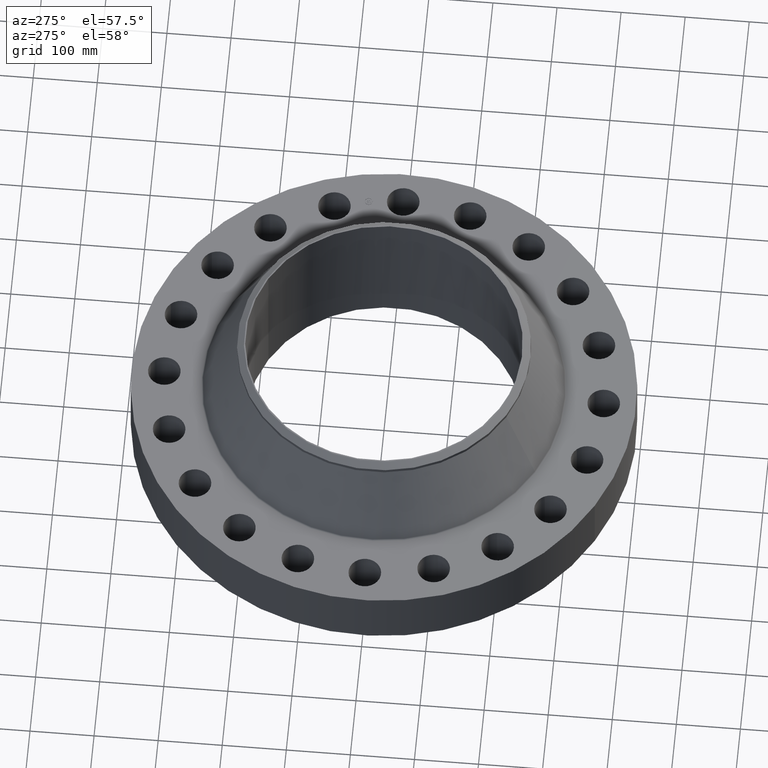
[diagram: clean part render]
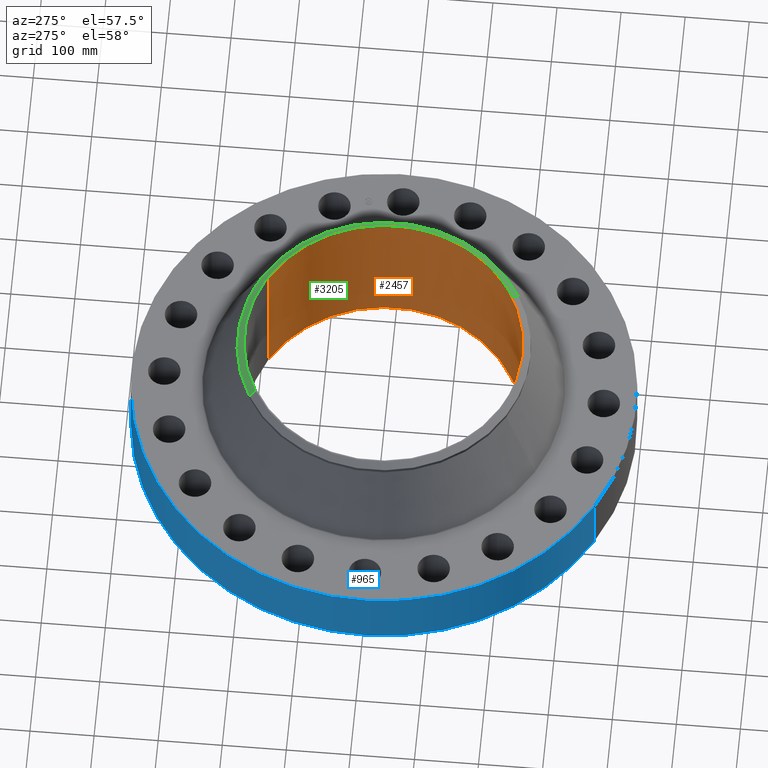
[diagram: same view with three faces highlighted in distinct colors, each labeled with its STEP entity id]
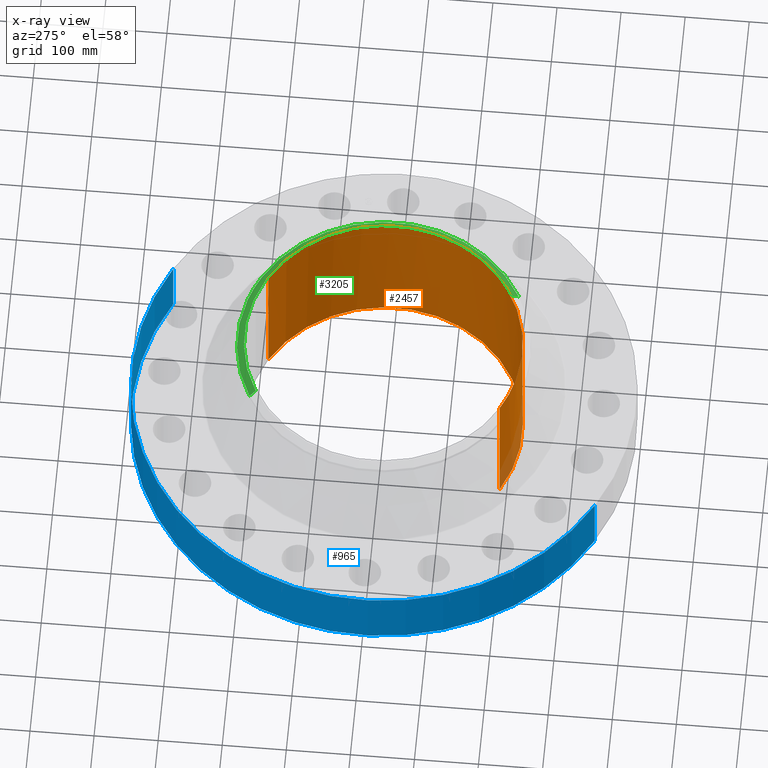
[diagram: x-ray of the same camera — body ghosted, the three highlighted faces saturated]
A machine part, auxiliary view with three faces highlighted in distinct colors.
The next image is the same camera in x-ray (body ghosted, the three faces saturated) — at least one of them is partly hidden behind the body in this view.
Their STEP definitions:

[orange] entity #2457 — the highlighted cylindrical surface (partial cylindrical patch) has radius 215.9 mm, axis along (-0, 0, -1).
#2138=AXIS2_PLACEMENT_3D('Circle Axis2P3D',#2136,#2137,$) ;
#2406=AXIS2_PLACEMENT_3D('Cylinder Axis2P3D',#2403,#2404,#2405) ;
#2136=CARTESIAN_POINT('Axis2P3D Location',(1.28110295775E-011,-2.83321922353E-011,-0.250000000001)) ;
#2140=CARTESIAN_POINT('Vertex',(4.07511707813,7.45945177607,-0.250000000001)) ;
#2142=CARTESIAN_POINT('Vertex',(-4.07511707815,-7.45945177609,-0.249999999965)) ;
#2403=CARTESIAN_POINT('Axis2P3D Location',(0.,0.,4.37500000002)) ;
#2409=CARTESIAN_POINT('Control Point',(4.07511707815,7.45945177609,9.00000000004)) ;
#2410=CARTESIAN_POINT('Control Point',(4.66098105064,7.13939282921,9.00000000004)) ;
#2411=CARTESIAN_POINT('Control Point',(5.2154233095,6.76181682133,9.00000000004)) ;
#2412=CARTESIAN_POINT('Control Point',(5.73091221257,6.33083345495,9.00000000004)) ;
#2413=CARTESIAN_POINT('Control Point',(6.67056657475,5.37326929513,9.00000000004)) ;
#2414=CARTESIAN_POINT('Control Point',(7.40605811924,4.2512480705,9.00000000003)) ;
#2415=CARTESIAN_POINT('Control Point',(7.71737757209,3.65580229668,9.00000000003)) ;
#2416=CARTESIAN_POINT('Control Point',(8.21906106555,2.4115382118,9.00000000003)) ;
#2417=CARTESIAN_POINT('Control Point',(8.46918771641,1.0934653386,9.00000000003)) ;
#2418=CARTESIAN_POINT('Control Point',(8.52894215445,0.424208378666,9.00000000003)) ;
#2419=CARTESIAN_POINT('Control Point',(8.5162780151,-0.917327703632,9.00000000003)) ;
#2420=CARTESIAN_POINT('Control Point',(8.24296025714,-2.23078757882,9.00000000003)) ;
#2421=CARTESIAN_POINT('Control Point',(8.04205260886,-2.87196741954,9.00000000002)) ;
#2422=CARTESIAN_POINT('Control Point',(7.51696883709,-4.10653879178,9.00000000002)) ;
#2423=CARTESIAN_POINT('Control Point',(6.76181682133,-5.2154233095,9.00000000002)) ;
#2424=CARTESIAN_POINT('Control Point',(6.33083345495,-5.73091221257,9.00000000002)) ;
#2425=CARTESIAN_POINT('Control Point',(5.37326929514,-6.67056657475,9.00000000002)) ;
#2426=CARTESIAN_POINT('Control Point',(4.25124807051,-7.40605811924,9.00000000002)) ;
#2427=CARTESIAN_POINT('Control Point',(3.65580229668,-7.71737757208,9.00000000002)) ;
#2428=CARTESIAN_POINT('Control Point',(2.4115382118,-8.21906106555,9.00000000001)) ;
#2429=CARTESIAN_POINT('Control Point',(1.0934653386,-8.46918771641,9.00000000001)) ;
#2430=CARTESIAN_POINT('Control Point',(0.424208378669,-8.52894215445,9.00000000001)) ;
#2431=CARTESIAN_POINT('Control Point',(-0.917327703629,-8.5162780151,9.00000000001)) ;
#2432=CARTESIAN_POINT('Control Point',(-2.23078757881,-8.24296025714,9.00000000001)) ;
#2433=CARTESIAN_POINT('Control Point',(-2.87196741954,-8.04205260886,9.00000000001)) ;
#2434=CARTESIAN_POINT('Control Point',(-3.48925310566,-7.77951072298,9.00000000001)) ;
#2435=CARTESIAN_POINT('Control Point',(-4.07511707815,-7.4594517761,9.00000000001)) ;
#2436=CARTESIAN_POINT('Vertex',(4.07511707815,7.45945177609,9.00000000001)) ;
#2438=CARTESIAN_POINT('Vertex',(-4.07511707813,-7.45945177608,9.00000000004)) ;
#2441=CARTESIAN_POINT('Line Origine',(4.07511707815,7.45945177609,4.37500000002)) ;
#2446=CARTESIAN_POINT('Line Origine',(-4.07511707815,-7.45945177609,4.37500000002)) ;
#2137=DIRECTION('Axis2P3D Direction',(0.,0.,-0.0393700787402)) ;
#2404=DIRECTION('Axis2P3D Direction',(-0.,0.,-0.0393700787402)) ;
#2405=DIRECTION('Axis2P3D XDirection',(0.0188750212049,0.0345504945626,0.)) ;
#2442=DIRECTION('Vector Direction',(0.,0.,-0.0393700787402)) ;
#2447=DIRECTION('Vector Direction',(0.,0.,-0.0393700787402)) ;
#2443=VECTOR('Line Direction',#2442,0.0393700787402) ;
#2448=VECTOR('Line Direction',#2447,0.0393700787402) ;
#2452=ORIENTED_EDGE('',*,*,#2440,.F.) ;
#2453=ORIENTED_EDGE('',*,*,#2445,.T.) ;
#2454=ORIENTED_EDGE('',*,*,#2144,.T.) ;
#2455=ORIENTED_EDGE('',*,*,#2450,.F.) ;
#2457=ADVANCED_FACE('PartBody',(#2456),#2407,.F.) ;
#2408=B_SPLINE_CURVE_WITH_KNOTS('',5,(#2409,#2410,#2411,#2412,#2413,#2414,#2415,#2416,#2417,#2418,#2419,#2420,#2421,#2422,#2423,#2424,#2425,#2426,#2427,#2428,#2429,#2430,#2431,#2432,#2433,#2434,#2435),.UNSPECIFIED.,.F.,.U.,(6,3,3,3,3,3,3,3,6),(-339.134926956,-254.351195217,-169.567463478,-84.783731739,2.84217094304E-014,84.783731739,169.567463478,254.351195217,339.134926956),.UNSPECIFIED.) ;
#2139=CIRCLE('generated circle',#2138,8.50000000002) ;
#2407=CYLINDRICAL_SURFACE('generated cylinder',#2406,8.50000000003) ;
#2144=EDGE_CURVE('',#2141,#2143,#2139,.T.) ;
#2440=EDGE_CURVE('',#2437,#2439,#2408,.T.) ;
#2445=EDGE_CURVE('',#2437,#2141,#2444,.T.) ;
#2450=EDGE_CURVE('',#2439,#2143,#2449,.T.) ;
#2451=EDGE_LOOP('',(#2452,#2453,#2454,#2455)) ;
#2456=FACE_OUTER_BOUND('',#2451,.T.) ;
#2444=LINE('Line',#2441,#2443) ;
#2449=LINE('Line',#2446,#2448) ;
#2141=VERTEX_POINT('',#2140) ;
#2143=VERTEX_POINT('',#2142) ;
#2437=VERTEX_POINT('',#2436) ;
#2439=VERTEX_POINT('',#2438) ;

[blue] entity #965 — the highlighted cylindrical surface (partial cylindrical patch) has radius 393.7 mm, axis along (0, 0, -1).
#143=AXIS2_PLACEMENT_3D('Circle Axis2P3D',#141,#142,$) ;
#547=AXIS2_PLACEMENT_3D('Circle Axis2P3D',#545,#546,$) ;
#947=AXIS2_PLACEMENT_3D('Cylinder Axis2P3D',#944,#945,#946) ;
#141=CARTESIAN_POINT('Axis2P3D Location',(0.,2.933478482E-011,0.)) ;
#145=CARTESIAN_POINT('Vertex',(-7.43109584842,-13.6025297094,1.67844740731E-015)) ;
#147=CARTESIAN_POINT('Vertex',(7.43109584842,13.6025297094,1.99987008581E-011)) ;
#540=CARTESIAN_POINT('Vertex',(7.43109584839,13.6025297094,4.00000000001)) ;
#542=CARTESIAN_POINT('Vertex',(-7.43109584842,-13.6025297094,4.00000000001)) ;
#545=CARTESIAN_POINT('Axis2P3D Location',(0.,-1.73305289629E-011,4.00000000002)) ;
#944=CARTESIAN_POINT('Axis2P3D Location',(0.,0.,4.37500000002)) ;
#949=CARTESIAN_POINT('Line Origine',(-7.43109584842,-13.6025297094,2.00000000001)) ;
#954=CARTESIAN_POINT('Line Origine',(7.43109584842,13.6025297094,2.00000000001)) ;
#142=DIRECTION('Axis2P3D Direction',(0.,0.,-0.0393700787402)) ;
#546=DIRECTION('Axis2P3D Direction',(0.,0.,-0.0393700787402)) ;
#945=DIRECTION('Axis2P3D Direction',(0.,0.,-0.0393700787402)) ;
#946=DIRECTION('Axis2P3D XDirection',(-0.0188750212049,-0.0345504945626,0.)) ;
#950=DIRECTION('Vector Direction',(0.,0.,-0.0393700787402)) ;
#955=DIRECTION('Vector Direction',(0.,0.,-0.0393700787402)) ;
#951=VECTOR('Line Direction',#950,0.0393700787402) ;
#956=VECTOR('Line Direction',#955,0.0393700787402) ;
#960=ORIENTED_EDGE('',*,*,#149,.F.) ;
#961=ORIENTED_EDGE('',*,*,#953,.T.) ;
#962=ORIENTED_EDGE('',*,*,#549,.T.) ;
#963=ORIENTED_EDGE('',*,*,#958,.F.) ;
#965=ADVANCED_FACE('PartBody',(#964),#948,.T.) ;
#144=CIRCLE('generated circle',#143,15.5000000001) ;
#548=CIRCLE('generated circle',#547,15.5000000001) ;
#948=CYLINDRICAL_SURFACE('generated cylinder',#947,15.5000000001) ;
#149=EDGE_CURVE('',#146,#148,#144,.T.) ;
#549=EDGE_CURVE('',#543,#541,#548,.T.) ;
#953=EDGE_CURVE('',#146,#543,#952,.F.) ;
#958=EDGE_CURVE('',#148,#541,#957,.F.) ;
#959=EDGE_LOOP('',(#960,#961,#962,#963)) ;
#964=FACE_OUTER_BOUND('',#959,.T.) ;
#952=LINE('Line',#949,#951) ;
#957=LINE('Line',#954,#956) ;
#146=VERTEX_POINT('',#145) ;
#148=VERTEX_POINT('',#147) ;
#541=VERTEX_POINT('',#540) ;
#543=VERTEX_POINT('',#542) ;

[green] entity #3205 — the highlighted conical surface has half-angle 52.5 deg.
#2545=AXIS2_PLACEMENT_3D('Circle Axis2P3D',#2543,#2544,$) ;
#3135=AXIS2_PLACEMENT_3D('Circle Axis2P3D',#3133,#3134,$) ;
#3196=AXIS2_PLACEMENT_3D('Cone Axis2P3D',#3193,#3194,#3195) ;
#2498=CARTESIAN_POINT('Vertex',(4.31482984746,7.89824305705,8.67675595391)) ;
#2512=CARTESIAN_POINT('Vertex',(-4.31482984746,7.89824305705,8.67675595391)) ;
#2516=CARTESIAN_POINT('Control Point',(-4.31482984746,7.89824305705,8.67675595391)) ;
#2517=CARTESIAN_POINT('Control Point',(-2.73518123605,8.76120902654,8.67675595391)) ;
#2518=CARTESIAN_POINT('Control Point',(-0.939808112716,9.22954305368,8.67675595391)) ;
#2519=CARTESIAN_POINT('Control Point',(0.939808112712,9.22954305368,8.67675595392)) ;
#2520=CARTESIAN_POINT('Control Point',(2.73518123605,8.76120902654,8.67675595392)) ;
#2521=CARTESIAN_POINT('Control Point',(4.31482984746,7.89824305705,8.67675595392)) ;
#2543=CARTESIAN_POINT('Axis2P3D Location',(0.,0.,8.67675595391)) ;
#2547=CARTESIAN_POINT('Vertex',(4.31482984746,-7.89824305705,8.67675595391)) ;
#3133=CARTESIAN_POINT('Axis2P3D Location',(5.59482469102E-016,-1.86643351693E-011,9.00000000004)) ;
#3137=CARTESIAN_POINT('Vertex',(4.11286712056,-7.52855276522,9.00000000004)) ;
#3139=CARTESIAN_POINT('Vertex',(-4.11286712056,7.52855276522,9.00000000004)) ;
#3168=CARTESIAN_POINT('Line Origine',(4.21384848401,-7.71339791113,8.83837797698)) ;
#3173=CARTESIAN_POINT('Line Origine',(-4.21384848401,7.71339791113,8.83837797698)) ;
#3193=CARTESIAN_POINT('Axis2P3D Location',(0.,0.,9.00000000004)) ;
#2544=DIRECTION('Axis2P3D Direction',(-0.,0.,-0.0393700787402)) ;
#3134=DIRECTION('Axis2P3D Direction',(0.,0.,-0.0393700787402)) ;
#3169=DIRECTION('Vector Direction',(0.014974561121,-0.02741075027,-0.023966985394)) ;
#3174=DIRECTION('Vector Direction',(-0.014974561121,0.02741075027,-0.023966985394)) ;
#3194=DIRECTION('Axis2P3D Direction',(-0.,-0.,-0.0393700787402)) ;
#3195=DIRECTION('Axis2P3D XDirection',(-0.0188750212049,0.0345504945626,0.)) ;
#3170=VECTOR('Line Direction',#3169,0.0393700787402) ;
#3175=VECTOR('Line Direction',#3174,0.0393700787402) ;
#3199=ORIENTED_EDGE('',*,*,#3177,.F.) ;
#3200=ORIENTED_EDGE('',*,*,#3141,.F.) ;
#3201=ORIENTED_EDGE('',*,*,#3172,.T.) ;
#3202=ORIENTED_EDGE('',*,*,#2549,.T.) ;
#3203=ORIENTED_EDGE('',*,*,#2522,.F.) ;
#3205=ADVANCED_FACE('PartBody',(#3204),#3197,.T.) ;
#2515=B_SPLINE_CURVE_WITH_KNOTS('',5,(#2516,#2517,#2518,#2519,#2520,#2521),.UNSPECIFIED.,.F.,.U.,(6,6),(-114.300000001,114.300000001),.UNSPECIFIED.) ;
#2546=CIRCLE('generated circle',#2545,9.00000000004) ;
#3136=CIRCLE('generated circle',#3135,8.57874015751) ;
#3197=CONICAL_SURFACE('Cone',#3196,8.57874015751,0.916297857297) ;
#2522=EDGE_CURVE('',#2513,#2499,#2515,.T.) ;
#2549=EDGE_CURVE('',#2548,#2499,#2546,.F.) ;
#3141=EDGE_CURVE('',#3138,#3140,#3136,.F.) ;
#3172=EDGE_CURVE('',#3138,#2548,#3171,.T.) ;
#3177=EDGE_CURVE('',#3140,#2513,#3176,.T.) ;
#3198=EDGE_LOOP('',(#3199,#3200,#3201,#3202,#3203)) ;
#3204=FACE_OUTER_BOUND('',#3198,.T.) ;
#3171=LINE('Line',#3168,#3170) ;
#3176=LINE('Line',#3173,#3175) ;
#2499=VERTEX_POINT('',#2498) ;
#2513=VERTEX_POINT('',#2512) ;
#2548=VERTEX_POINT('',#2547) ;
#3138=VERTEX_POINT('',#3137) ;
#3140=VERTEX_POINT('',#3139) ;